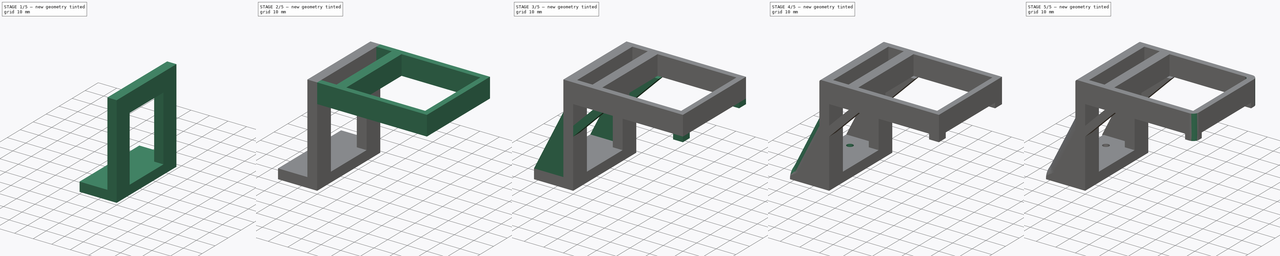
[diagram: build sequence overview — one tinted view per stage of 5, left to right]
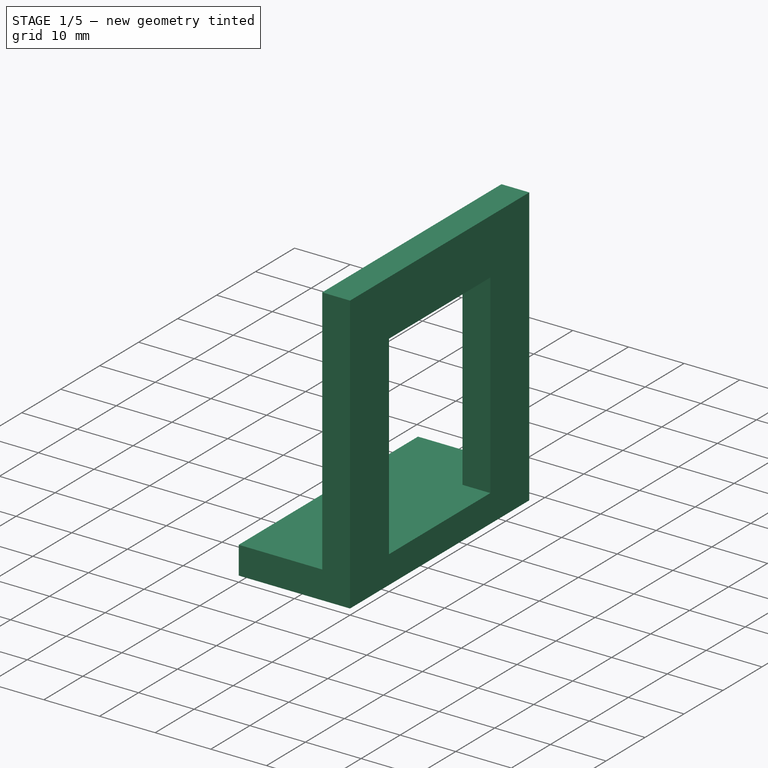
[diagram: stage 1 of 5 — iso view after this stage's code; geometry added in this stage tinted green]
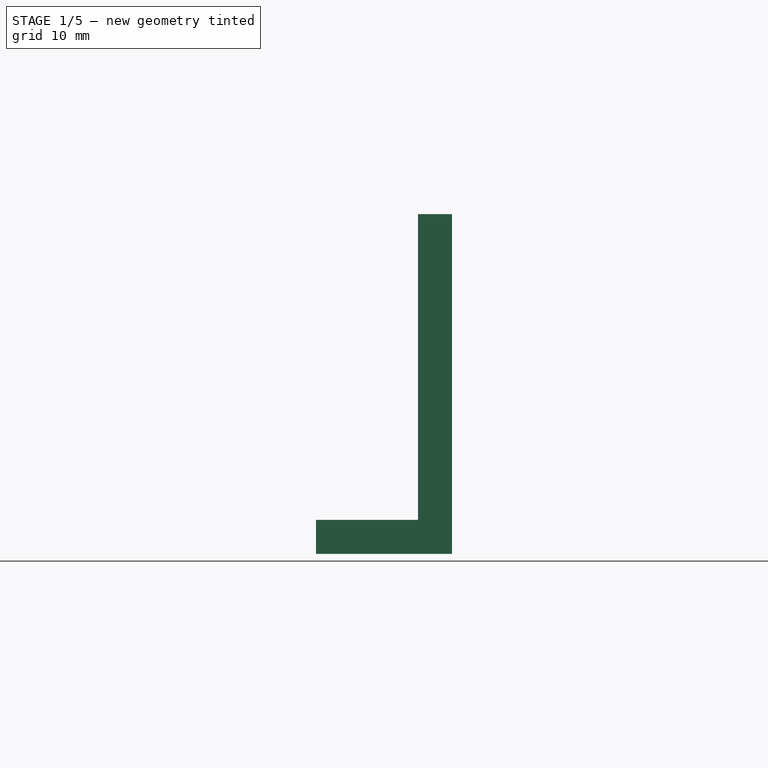
[diagram: stage 1 of 5 — front view after this stage's code; geometry added in this stage tinted green]
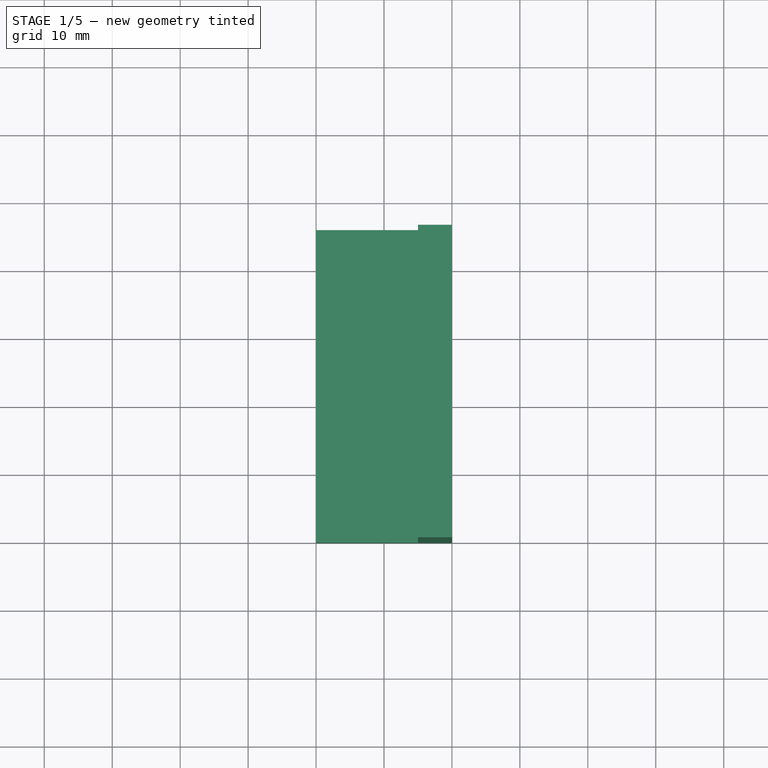
[diagram: stage 1 of 5 — top view after this stage's code; geometry added in this stage tinted green]
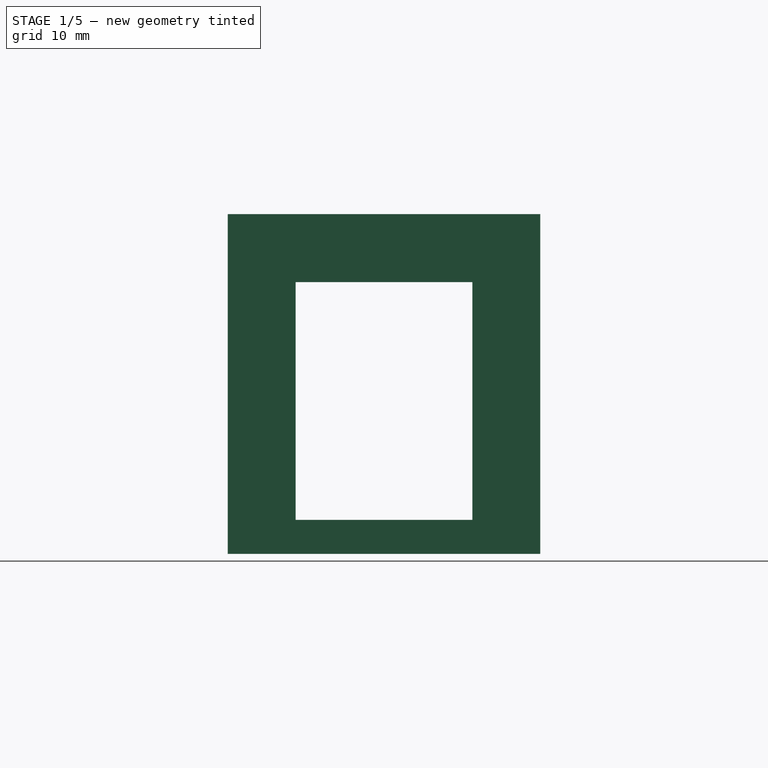
[diagram: stage 1 of 5 — right view after this stage's code; geometry added in this stage tinted green]
FCSTD DOCUMENT  (FreeCAD 0.19R24291 (Git))
Label: Fan Holder
License: All rights reserved
LicenseURL: http://en.wikipedia.org/wiki/All_rights_reserved
objects: Sketcher::SketchObject×12, PartDesign::Pad×6, PartDesign::Pocket×5, PartDesign::Fillet×5, PartDesign::Body×1
note: 45 computed .brp shape members not serialized (recipe doc carries the construction recipe); baked Part::Feature solids carry a one-line shape summary decoded from their .brp

FEATURE [Sketcher::SketchObject] Sketch
  FullyConstrained = true
  MapMode = 5
  Support = -> [XY_Plane]
  sketch-geometry (4):
    g0: LineSegment StartX=0 StartY=0 StartZ=0 EndX=-20 EndY=0 EndZ=0
    g1: LineSegment StartX=-20 StartY=0 StartZ=0 EndX=-20 EndY=46 EndZ=0
    g2: LineSegment StartX=-20 StartY=46 StartZ=0 EndX=0 EndY=46 EndZ=0
    g3: LineSegment StartX=0 StartY=46 StartZ=0 EndX=0 EndY=0 EndZ=0
  constraints (11):
    c: Coincident(g0,g1)
    c: Coincident(g1,g2)
    c: Coincident(g2,g3)
    c: Coincident(g3,g0)
    c: Horizontal(g0)
    c: Horizontal(g2)
    c: Vertical(g1)
    c: Vertical(g3)
    c: Coincident(g0,g-1)
    c: DistanceX(g0,g0) = 20
    c: DistanceY(g1,g1) = 46
FEATURE [PartDesign::Pad] Pad
  Direction = (1,1,1)
  Length = 5
  Length2 = 100
  Profile = -> Sketch
  Type = 0
FEATURE [Sketcher::SketchObject] Sketch001
  ExternalGeometry = -> [Pad]
  FullyConstrained = true
  MapMode = 5
  Placement = pos=(0,0,5) rot=(0,0,1;0rad)
  Support = -> [Pad]
  sketch-geometry (4):
    g0: LineSegment StartX=0 StartY=0 StartZ=0 EndX=-5 EndY=0 EndZ=0
    g1: LineSegment StartX=-5 StartY=0 StartZ=0 EndX=-5 EndY=46 EndZ=0
    g2: LineSegment StartX=-5 StartY=46 StartZ=0 EndX=0 EndY=46 EndZ=0
    g3: LineSegment StartX=0 StartY=46 StartZ=0 EndX=0 EndY=0 EndZ=0
  constraints (11):
    c: Coincident(g0,g1)
    c: Coincident(g1,g2)
    c: Coincident(g2,g3)
    c: Coincident(g3,g0)
    c: Horizontal(g0)
    c: Horizontal(g2)
    c: Vertical(g1)
    c: Vertical(g3)
    c: Coincident(g0,g-1)
    c: PointOnObject(g1,g-3)
    c: DistanceX(g2,g2) = 5
FEATURE [PartDesign::Pad] Pad001
  BaseFeature = -> Pad
  Direction = (1,1,1)
  Length = 45
  Length2 = 100
  Profile = -> Sketch001
  Type = 0
FEATURE [Sketcher::SketchObject] Sketch002
  FullyConstrained = true
  MapMode = 5
  Placement = pos=(0,0,0) rot=(0.57735,0.57735,0.57735;2.0944rad)
  Support = -> [Pad001]
FEATURE [Sketcher::SketchObject] Sketch003
  ExternalGeometry = -> [Pad001]
  FullyConstrained = true
  MapMode = 5
  Placement = pos=(-5,0,0) rot=(0.57735,-0.57735,-0.57735;2.0944rad)
  Support = -> [Pad001]
  sketch-geometry (4):
    g0: LineSegment StartX=-36 StartY=40 StartZ=0 EndX=-10 EndY=40 EndZ=0
    g1: LineSegment StartX=-10 StartY=40 StartZ=0 EndX=-10 EndY=5 EndZ=0
    g2: LineSegment StartX=-10 StartY=5 StartZ=0 EndX=-36 EndY=5 EndZ=0
    g3: LineSegment StartX=-36 StartY=5 StartZ=0 EndX=-36 EndY=40 EndZ=0
  constraints (12):
    c: Coincident(g0,g1)
    c: Coincident(g1,g2)
    c: Coincident(g2,g3)
    c: Coincident(g3,g0)
    c: Horizontal(g0)
    c: Horizontal(g2)
    c: Vertical(g1)
    c: Vertical(g3)
    c: PointOnObject(g1,g-3)
    c: Distance(g0,g-5) = 10
    c: Distance(g0,g-4) = 10
    c: DistanceX(g-2,g0) = -10
FEATURE [PartDesign::Pocket] Pocket
  BaseFeature = -> Pad001
  Length = 5
  Length2 = 100
  Profile = -> Sketch003
  Type = 0
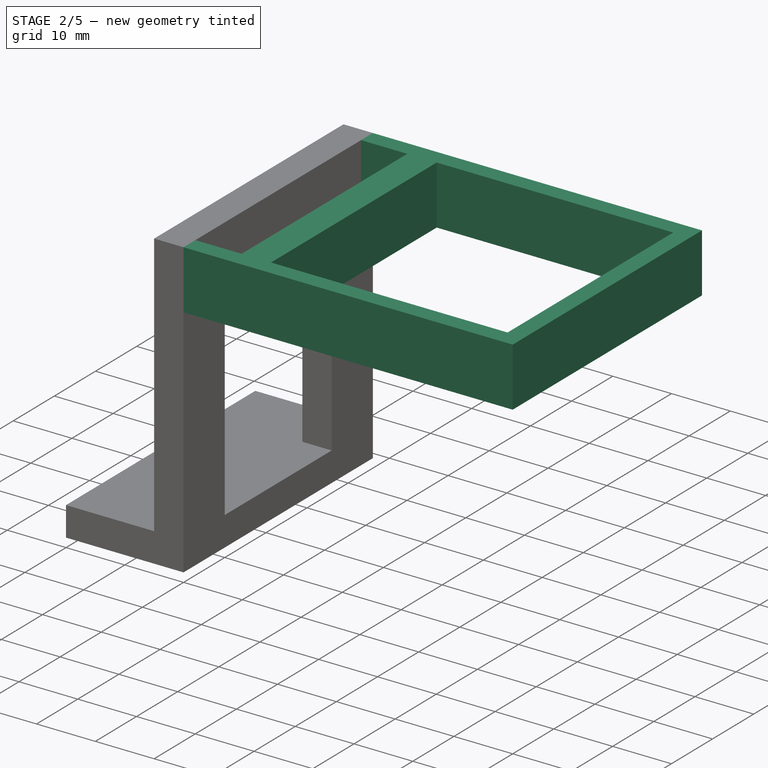
[diagram: stage 2 of 5 — iso view after this stage's code; geometry added in this stage tinted green]
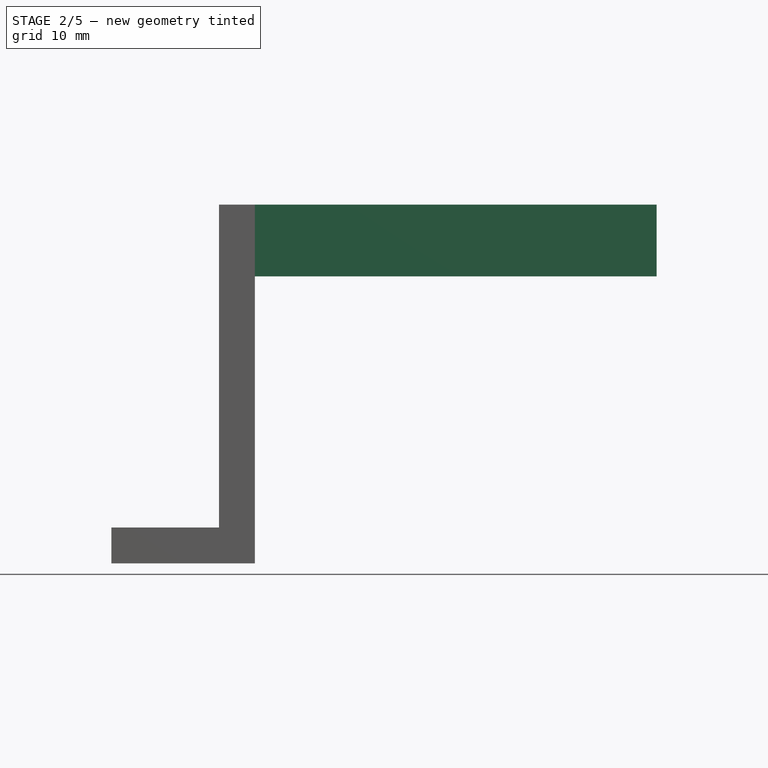
[diagram: stage 2 of 5 — front view after this stage's code; geometry added in this stage tinted green]
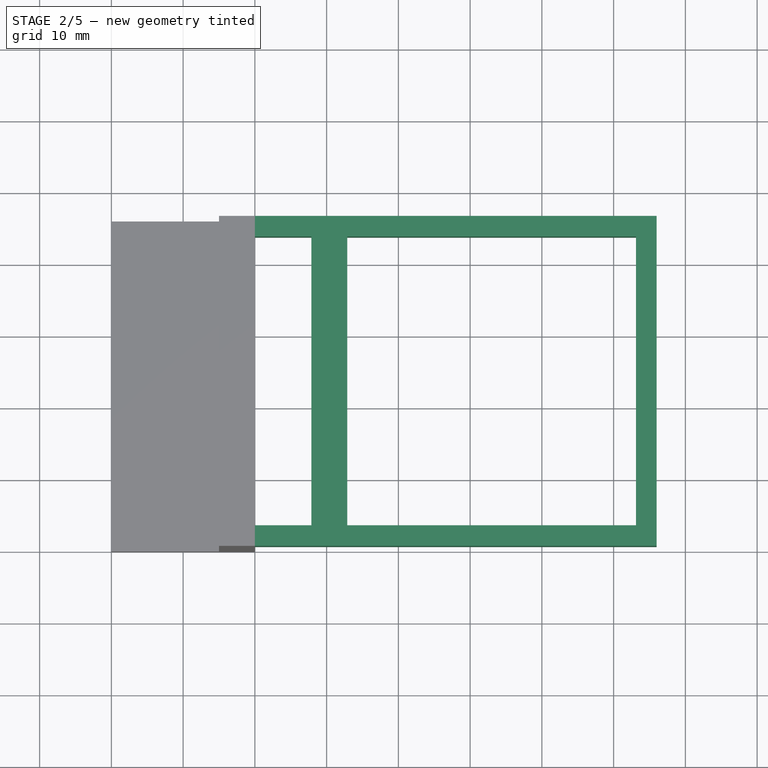
[diagram: stage 2 of 5 — top view after this stage's code; geometry added in this stage tinted green]
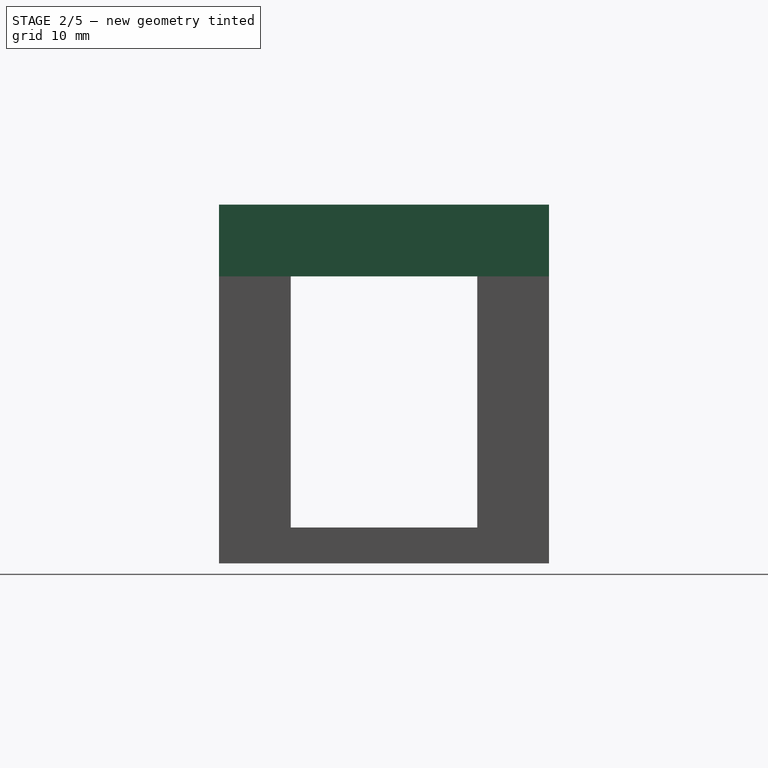
[diagram: stage 2 of 5 — right view after this stage's code; geometry added in this stage tinted green]
FEATURE [Sketcher::SketchObject] Sketch004
  ExternalGeometry = -> [Pocket]
  FullyConstrained = true
  MapMode = 5
  Placement = pos=(0,0,0) rot=(0.57735,0.57735,0.57735;2.0944rad)
  Support = -> [Pocket]
  sketch-geometry (4):
    g0: LineSegment StartX=0 StartY=50 StartZ=0 EndX=46 EndY=50 EndZ=0
    g1: LineSegment StartX=46 StartY=50 StartZ=0 EndX=46 EndY=40 EndZ=0
    g2: LineSegment StartX=46 StartY=40 StartZ=0 EndX=0 EndY=40 EndZ=0
    g3: LineSegment StartX=0 StartY=40 StartZ=0 EndX=0 EndY=50 EndZ=0
  constraints (11):
    c: Coincident(g0,g1)
    c: Coincident(g1,g2)
    c: Coincident(g2,g3)
    c: Coincident(g3,g0)
    c: Horizontal(g0)
    c: Horizontal(g2)
    c: Vertical(g1)
    c: Vertical(g3)
    c: Coincident(g0,g-6)
    c: PointOnObject(g1,g-5)
    c: PointOnObject(g-4,g2)
FEATURE [PartDesign::Pad] Pad002
  BaseFeature = -> Pocket
  Direction = (1,1,1)
  Length = 56
  Length2 = 100
  Profile = -> Sketch004
  Type = 0
FEATURE [Sketcher::SketchObject] Sketch005
  ExternalGeometry = -> [Pad002]
  FullyConstrained = true
  MapMode = 5
  Placement = pos=(0,0,50) rot=(0,0,1;0rad)
  Support = -> [Pad002]
  sketch-geometry (6):
    g0: LineSegment StartX=12.87 StartY=43.125 StartZ=0 EndX=53.12 EndY=43.125 EndZ=0
    g1: LineSegment StartX=53.12 StartY=43.125 StartZ=0 EndX=53.12 EndY=2.875 EndZ=0
    g2: LineSegment StartX=53.12 StartY=2.875 StartZ=0 EndX=12.87 EndY=2.875 EndZ=0
    g3: LineSegment StartX=12.87 StartY=2.875 StartZ=0 EndX=12.87 EndY=43.125 EndZ=0
    g4: LineSegment StartX=56 StartY=46 StartZ=0 EndX=53.12 EndY=43.125 EndZ=0
    g5: LineSegment StartX=56 StartY=0 StartZ=0 EndX=53.12 EndY=2.875 EndZ=0
  constraints (16):
    c: Coincident(g0,g1)
    c: Coincident(g1,g2)
    c: Coincident(g2,g3)
    c: Coincident(g3,g0)
    c: Horizontal(g0)
    c: Horizontal(g2)
    c: Vertical(g1)
    c: Vertical(g3)
    c: Equal(g2,g3)
    c: DistanceY(g3,g3) = 40.25
    c: Distance(g0,g-4) = 2.88
    c: Coincident(g4,g-4)
    c: Coincident(g4,g0)
    c: Coincident(g5,g-4)
    c: Coincident(g5,g1)
    c: Equal(g5,g4)
FEATURE [PartDesign::Pocket] Pocket001
  BaseFeature = -> Pad002
  Length = 5
  Length2 = 100
  Profile = -> Sketch005
  Type = 1
FEATURE [Sketcher::SketchObject] Sketch006
  ExternalGeometry = -> [Pocket001]
  FullyConstrained = true
  MapMode = 5
  Placement = pos=(0,0,50) rot=(0,0,1;0rad)
  Support = -> [Pocket001]
  sketch-geometry (8):
    g0: LineSegment StartX=12.87 StartY=43.125 StartZ=0 EndX=7.87 EndY=43.125 EndZ=0
    g1: LineSegment StartX=7.87 StartY=43.125 StartZ=0 EndX=7.87 EndY=2.875 EndZ=0
    g2: LineSegment StartX=7.87 StartY=2.875 StartZ=0 EndX=12.87 EndY=2.875 EndZ=0
    g3: LineSegment StartX=12.87 StartY=2.875 StartZ=0 EndX=12.87 EndY=43.125 EndZ=0
    g4: LineSegment StartX=7.87 StartY=43.125 StartZ=0 EndX=0 EndY=43.125 EndZ=0
    g5: LineSegment StartX=0 StartY=43.125 StartZ=0 EndX=0 EndY=2.875 EndZ=0
    g6: LineSegment StartX=0 StartY=2.875 StartZ=0 EndX=7.87 EndY=2.875 EndZ=0
    g7: LineSegment StartX=7.87 StartY=2.875 StartZ=0 EndX=7.87 EndY=43.125 EndZ=0
  constraints (21):
    c: Coincident(g0,g1)
    c: Coincident(g1,g2)
    c: Coincident(g2,g3)
    c: Coincident(g3,g0)
    c: Horizontal(g0)
    c: Horizontal(g2)
    c: Vertical(g1)
    c: Coincident(g0,g-3)
    c: Coincident(g2,g-3)
    c: DistanceX(g2,g2) = 5
    c: Coincident(g4,g5)
    c: Coincident(g5,g6)
    c: Coincident(g6,g7)
    c: Coincident(g7,g4)
    c: Horizontal(g4)
    c: Horizontal(g6)
    c: Vertical(g5)
    c: Vertical(g7)
    c: Coincident(g4,g0)
    c: PointOnObject(g5,g-2)
    c: PointOnObject(g1,g6)
FEATURE [PartDesign::Pocket] Pocket002
  BaseFeature = -> Pocket001
  Length = 5
  Length2 = 100
  Profile = -> Sketch006
  Type = 1
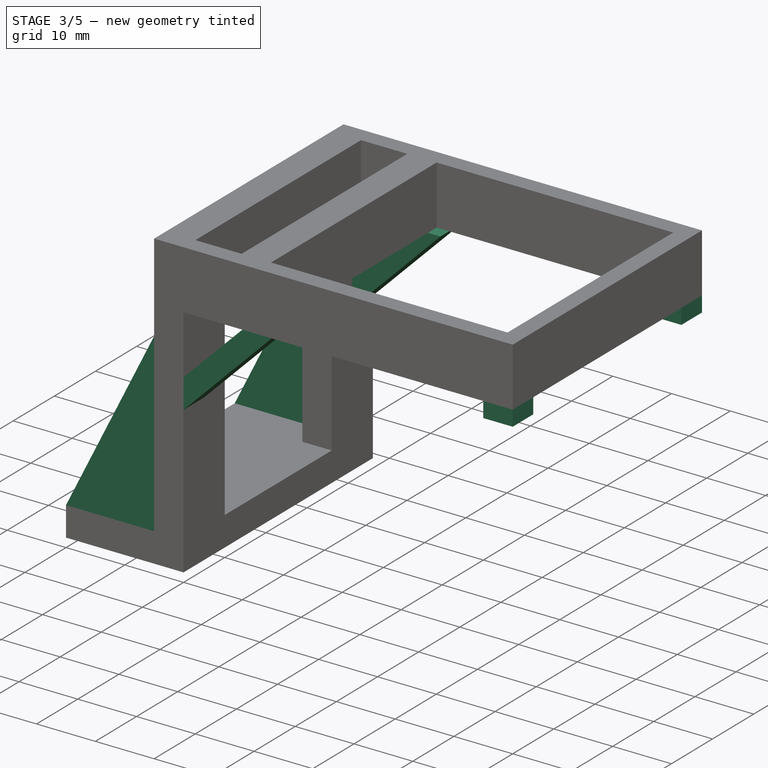
[diagram: stage 3 of 5 — iso view after this stage's code; geometry added in this stage tinted green]
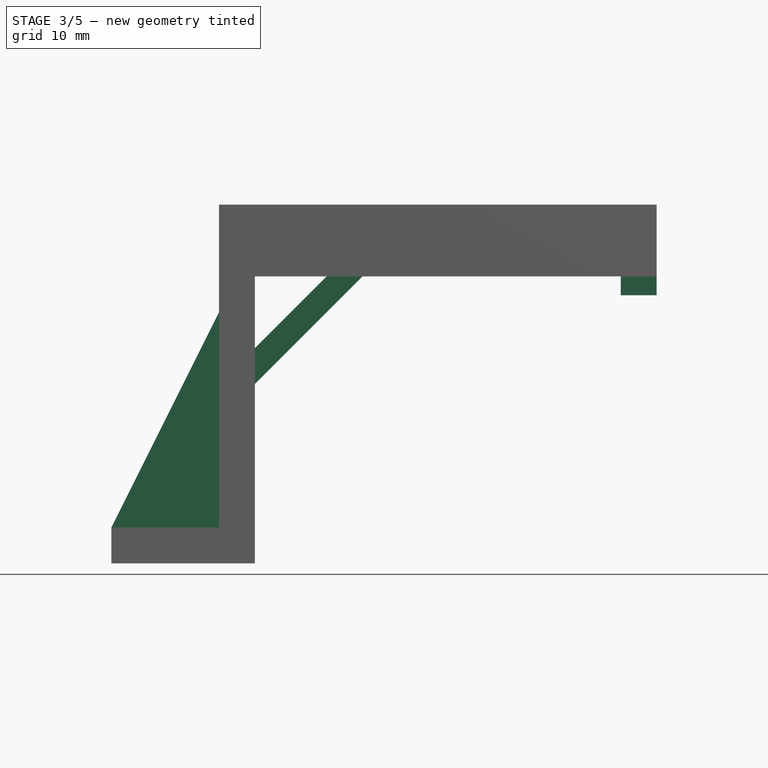
[diagram: stage 3 of 5 — front view after this stage's code; geometry added in this stage tinted green]
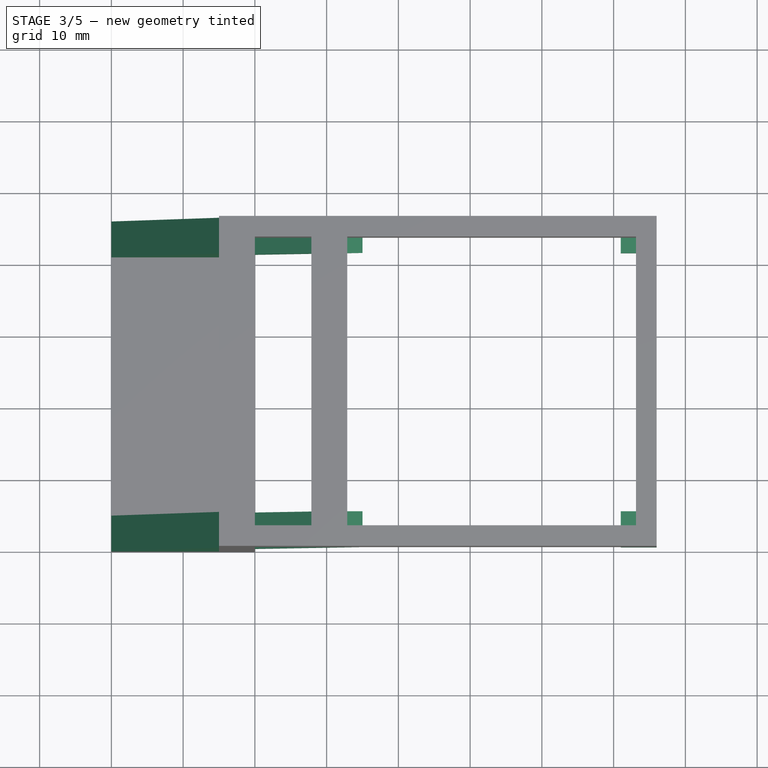
[diagram: stage 3 of 5 — top view after this stage's code; geometry added in this stage tinted green]
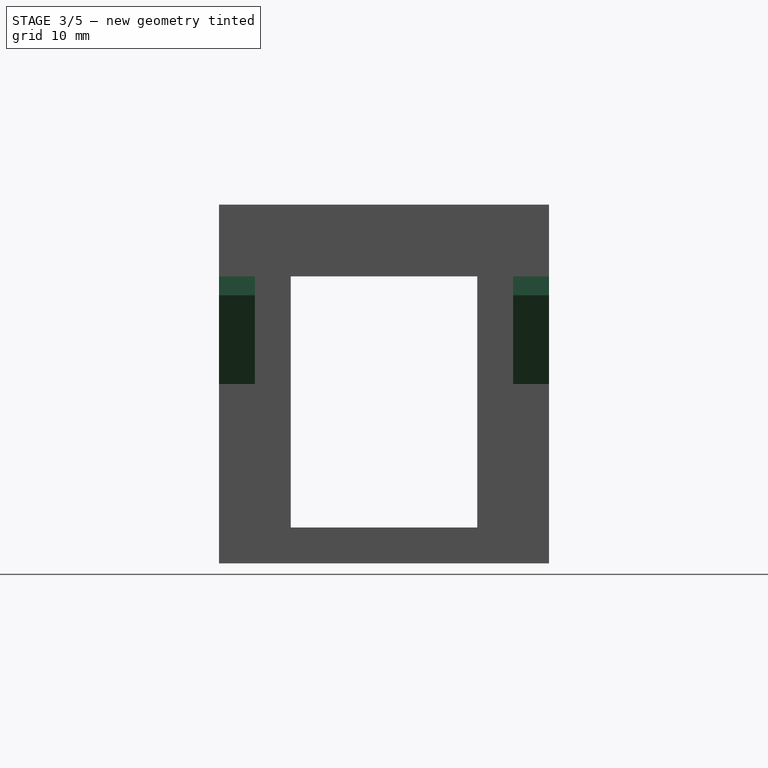
[diagram: stage 3 of 5 — right view after this stage's code; geometry added in this stage tinted green]
FEATURE [Sketcher::SketchObject] Sketch007
  ExternalGeometry = -> [Pocket002]
  FullyConstrained = false
  MapMode = 5
  Placement = pos=(0,46,0) rot=(0,0.707107,0.707107;3.14159rad)
  Support = -> [Pocket002]
  sketch-geometry (8):
    g0: LineSegment StartX=-15 StartY=40 StartZ=0 EndX=0 EndY=25 EndZ=0
    g1: LineSegment StartX=0 StartY=25 StartZ=0 EndX=0 EndY=30 EndZ=0
    g2: LineSegment StartX=0 StartY=30 StartZ=0 EndX=-10 EndY=40 EndZ=0
    g3: LineSegment StartX=-10 StartY=40 StartZ=0 EndX=-15 EndY=40 EndZ=0
    g4: LineSegment StartX=-56 StartY=40 StartZ=0 EndX=-51 EndY=40 EndZ=0
    g5: LineSegment StartX=-51 StartY=40 StartZ=0 EndX=-51 EndY=37.3739 EndZ=0
    g6: LineSegment StartX=-51 StartY=37.3739 StartZ=0 EndX=-56 EndY=37.3739 EndZ=0
    g7: LineSegment StartX=-56 StartY=37.3739 StartZ=0 EndX=-56 EndY=40 EndZ=0
  constraints (22):
    c: PointOnObject(g0,g-3)
    c: Coincident(g1,g0)
    c: Coincident(g2,g1)
    c: PointOnObject(g2,g-3)
    c: Coincident(g3,g2)
    c: Coincident(g3,g0)
    c: PointOnObject(g0,g-2)
    c: PointOnObject(g1,g-2)
    c: DistanceY(g1,g1) = 5
    c: DistanceX(g3,g3) = 5
    c: Distance(g0,g-3) = 15
    c: Distance(g-3,g2) = 10
    c: Coincident(g4,g5)
    c: Coincident(g5,g6)
    c: Coincident(g6,g7)
    c: Coincident(g7,g4)
    c: Horizontal(g4)
    c: Horizontal(g6)
    c: Vertical(g5)
    c: Vertical(g7)
    c: Coincident(g4,g-3)
    c: DistanceX(g6,g6) = 5
FEATURE [PartDesign::Pad] Pad003
  BaseFeature = -> Pocket002
  Direction = (1,1,1)
  Length = 5
  Length2 = 100
  Profile = -> Sketch007
  Reversed = true
  Type = 0
FEATURE [Sketcher::SketchObject] Sketch008
  ExternalGeometry = -> [Pad003]
  FullyConstrained = true
  MapMode = 5
  Placement = pos=(0,0,0) rot=(1,0,0;1.5708rad)
  Support = -> [Pad003]
  sketch-geometry (8):
    g0: LineSegment StartX=0 StartY=30 StartZ=0 EndX=10 EndY=40 EndZ=0
    g1: LineSegment StartX=15 StartY=40 StartZ=0 EndX=10 EndY=40 EndZ=0
    g2: LineSegment StartX=15 StartY=40 StartZ=0 EndX=1.8e-15 EndY=25 EndZ=0
    g3: LineSegment StartX=1.8e-15 StartY=25 StartZ=0 EndX=0 EndY=30 EndZ=0
    g4: LineSegment StartX=51 StartY=40 StartZ=0 EndX=56 EndY=40 EndZ=0
    g5: LineSegment StartX=56 StartY=40 StartZ=0 EndX=56 EndY=37.3739 EndZ=0
    g6: LineSegment StartX=56 StartY=37.3739 StartZ=0 EndX=51 EndY=37.3739 EndZ=0
    g7: LineSegment StartX=51 StartY=37.3739 StartZ=0 EndX=51 EndY=40 EndZ=0
  constraints (18):
    c: Coincident(g0,g-7)
    c: Coincident(g0,g-7)
    c: Coincident(g1,g-6)
    c: Coincident(g1,g0)
    c: Coincident(g2,g1)
    c: Coincident(g2,g-6)
    c: Coincident(g3,g2)
    c: Coincident(g3,g0)
    c: Coincident(g4,g5)
    c: Coincident(g5,g6)
    c: Coincident(g6,g7)
    c: Coincident(g7,g4)
    c: Horizontal(g4)
    c: Horizontal(g6)
    c: Vertical(g5)
    c: Vertical(g7)
    c: Coincident(g4,g-3)
    c: Coincident(g5,g-4)
FEATURE [PartDesign::Pad] Pad004
  BaseFeature = -> Pad003
  Direction = (1,1,1)
  Length = 5
  Length2 = 100
  Profile = -> Sketch008
  Reversed = true
  Type = 0
FEATURE [Sketcher::SketchObject] Sketch009
  ExternalGeometry = -> [Pad004]
  FullyConstrained = true
  MapMode = 5
  Placement = pos=(0,0,5) rot=(0,0,1;0rad)
  Support = -> [Pad004]
  sketch-geometry (8):
    g0: LineSegment StartX=-5 StartY=46 StartZ=0 EndX=-20 EndY=46 EndZ=0
    g1: LineSegment StartX=-20 StartY=46 StartZ=0 EndX=-20 EndY=41 EndZ=0
    g2: LineSegment StartX=-20 StartY=41 StartZ=0 EndX=-5 EndY=41 EndZ=0
    g3: LineSegment StartX=-5 StartY=41 StartZ=0 EndX=-5 EndY=46 EndZ=0
    g4: LineSegment StartX=-5 StartY=0 StartZ=0 EndX=-20 EndY=0 EndZ=0
    g5: LineSegment StartX=-20 StartY=0 StartZ=0 EndX=-20 EndY=5 EndZ=0
    g6: LineSegment StartX=-20 StartY=5 StartZ=0 EndX=-5 EndY=5 EndZ=0
    g7: LineSegment StartX=-5 StartY=5 StartZ=0 EndX=-5 EndY=0 EndZ=0
  constraints (22):
    c: Coincident(g0,g1)
    c: Coincident(g1,g2)
    c: Coincident(g2,g3)
    c: Coincident(g3,g0)
    c: Horizontal(g0)
    c: Horizontal(g2)
    c: Vertical(g1)
    c: Vertical(g3)
    c: Coincident(g0,g-6)
    c: PointOnObject(g1,g-5)
    c: Coincident(g4,g5)
    c: Coincident(g5,g6)
    c: Coincident(g6,g7)
    c: Coincident(g7,g4)
    c: Horizontal(g4)
    c: Horizontal(g6)
    c: Vertical(g5)
    c: Vertical(g7)
    c: Coincident(g4,g-6)
    c: PointOnObject(g5,g-5)
    c: DistanceY(g5,g5) = 5
    c: DistanceY(g1,g1) = 5
FEATURE [PartDesign::Pad] Pad005
  BaseFeature = -> Pad004
  Direction = (1,1,1)
  Length = 30
  Length2 = 100
  Profile = -> Sketch009
  Type = 0
FEATURE [Sketcher::SketchObject] Sketch010
  ExternalGeometry = -> [Pad005]
  FullyConstrained = true
  MapMode = 5
  Placement = pos=(0,0,0) rot=(1,0,0;1.5708rad)
  Support = -> [Pad005]
  sketch-geometry (3):
    g0: LineSegment StartX=-5 StartY=35 StartZ=0 EndX=-20 EndY=5 EndZ=0
    g1: LineSegment StartX=-20 StartY=35 StartZ=0 EndX=-20 EndY=5 EndZ=0
    g2: LineSegment StartX=-20 StartY=35 StartZ=0 EndX=-5 EndY=35 EndZ=0
  constraints (6):
    c: Coincident(g0,g-3)
    c: Coincident(g0,g-4)
    c: Coincident(g1,g-4)
    c: Coincident(g1,g0)
    c: Coincident(g2,g1)
    c: Coincident(g2,g0)
FEATURE [PartDesign::Pocket] Pocket003
  BaseFeature = -> Pad005
  Length = 5
  Length2 = 100
  Profile = -> Sketch010
  Type = 1
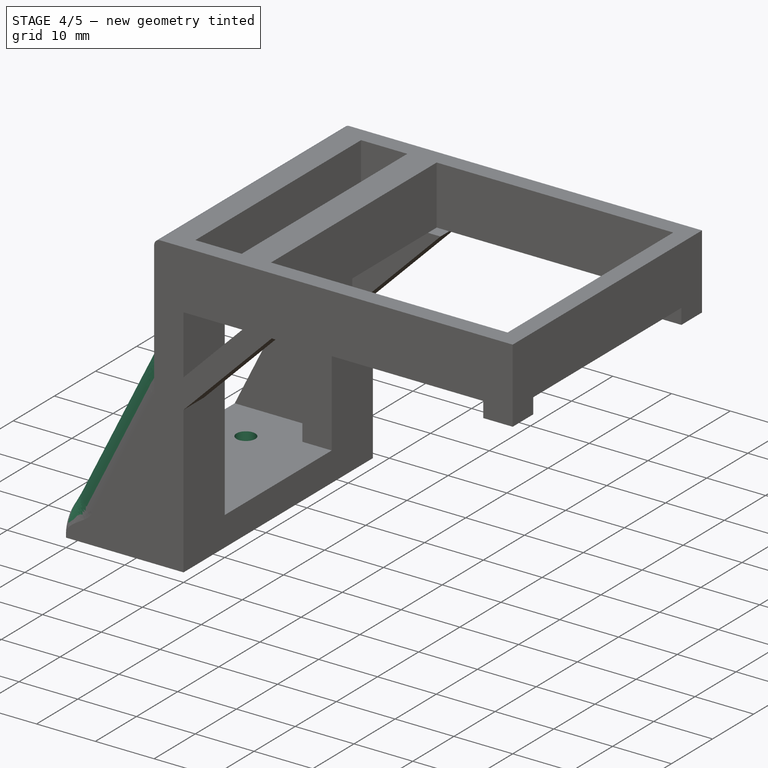
[diagram: stage 4 of 5 — iso view after this stage's code; geometry added in this stage tinted green]
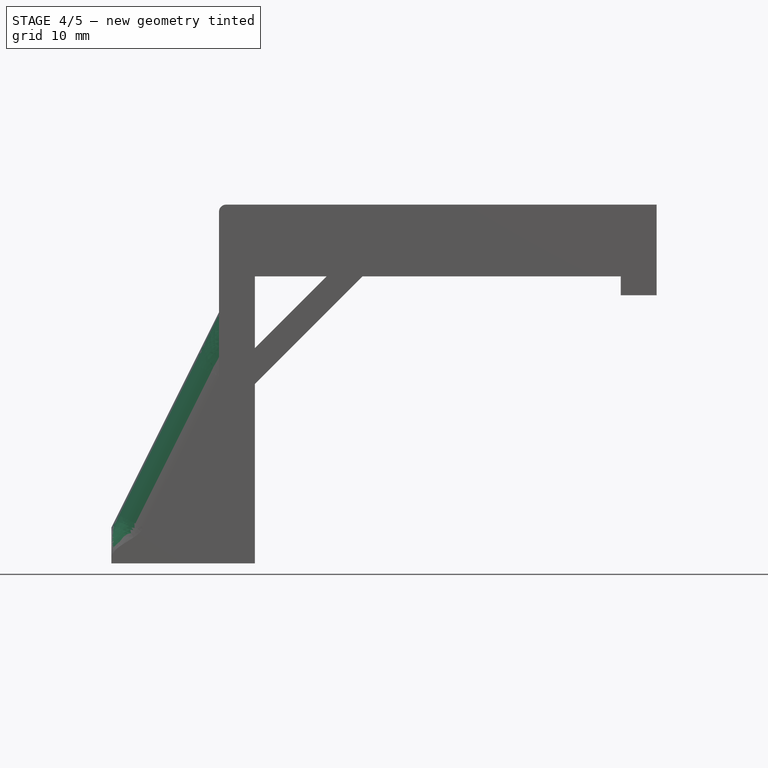
[diagram: stage 4 of 5 — front view after this stage's code; geometry added in this stage tinted green]
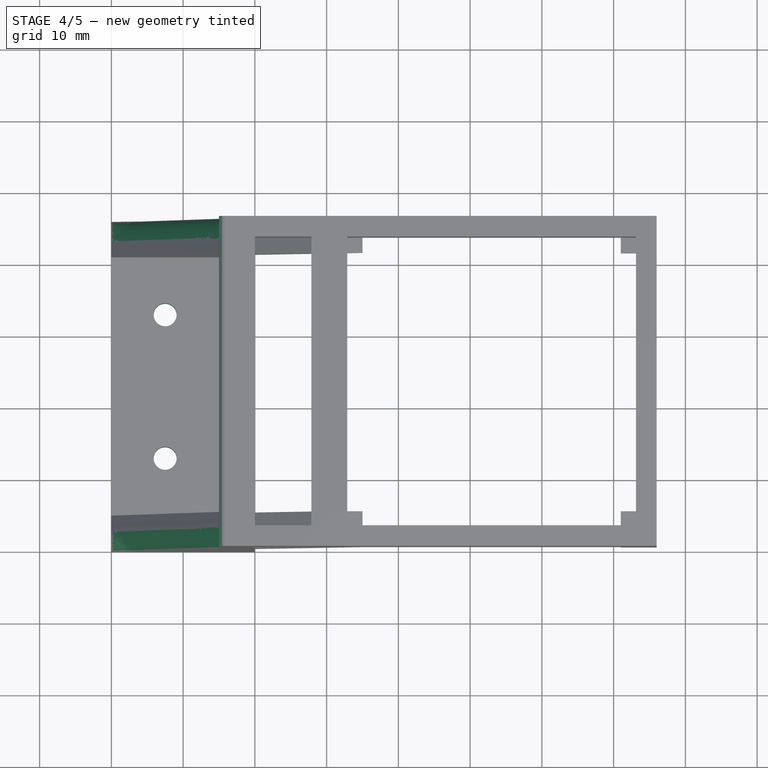
[diagram: stage 4 of 5 — top view after this stage's code; geometry added in this stage tinted green]
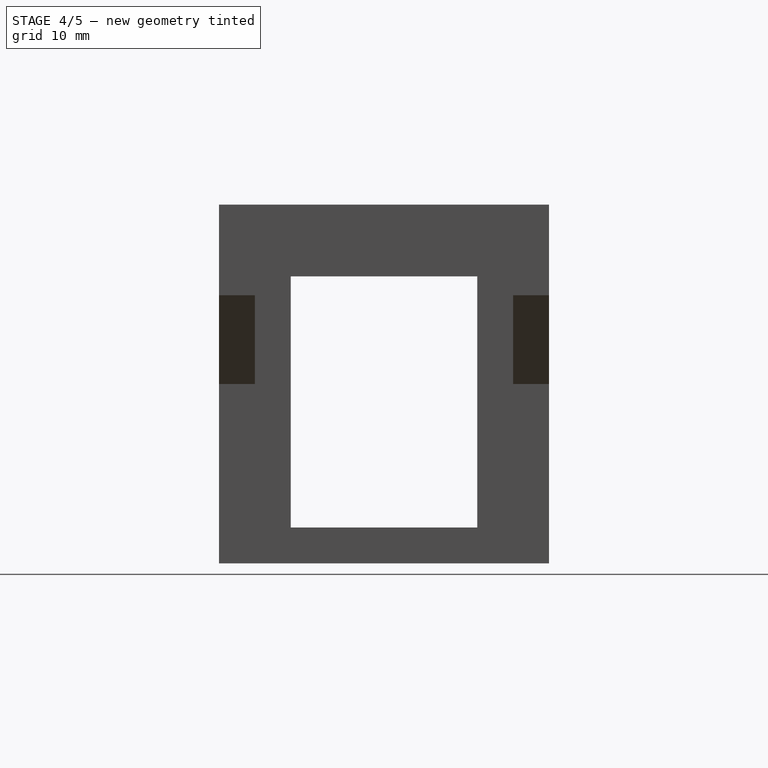
[diagram: stage 4 of 5 — right view after this stage's code; geometry added in this stage tinted green]
FEATURE [Sketcher::SketchObject] Sketch011
  ExternalGeometry = -> [Pocket003]
  FullyConstrained = true
  MapMode = 5
  Placement = pos=(0,0,5) rot=(0,0,1;0rad)
  Support = -> [Pocket003]
  sketch-geometry (7):
    g0: LineSegment StartX=-20 StartY=41 StartZ=0 EndX=-12.5 EndY=33 EndZ=0
    g1: LineSegment StartX=-12.5 StartY=33 StartZ=0 EndX=-5 EndY=41 EndZ=0
    g2: LineSegment StartX=-12.5 StartY=33 StartZ=0 EndX=-12.5 EndY=13 EndZ=0
    g3: LineSegment StartX=-12.5 StartY=13 StartZ=0 EndX=-5 EndY=5 EndZ=0
    g4: LineSegment StartX=-20 StartY=5 StartZ=0 EndX=-12.5 EndY=13 EndZ=0
    g5: Circle CenterX=-12.5 CenterY=33 CenterZ=0 NormalX=0 NormalY=0 NormalZ=1 AngleXU=0 Radius=1.6
    g6: Circle CenterX=-12.5 CenterY=13 CenterZ=0 NormalX=0 NormalY=0 NormalZ=1 AngleXU=0 Radius=1.6
  constraints (16):
    c: Coincident(g0,g-6)
    c: Coincident(g1,g0)
    c: Coincident(g1,g-3)
    c: Coincident(g2,g0)
    c: Coincident(g3,g2)
    c: Coincident(g3,g-4)
    c: Coincident(g4,g-6)
    c: Coincident(g4,g2)
    c: Equal(g3,g4)
    c: Equal(g4,g0)
    c: Equal(g0,g1)
    c: Distance(g2) = 20
    c: Coincident(g5,g0)
    c: Coincident(g6,g2)
    c: Radius(g6) = 1.6
    c: Equal(g6,g5)
FEATURE [PartDesign::Pocket] Pocket004
  BaseFeature = -> Pocket003
  Length = 5
  Length2 = 100
  Profile = -> Sketch011
  Type = 0
FEATURE [PartDesign::Fillet] Fillet
  Base = -> Pocket004 [Edge68]
  BaseFeature = -> Pocket004
  Radius = 1
  SupportTransform = false
FEATURE [PartDesign::Fillet] Fillet001
  Base = -> Fillet [Edge22,Edge51]
  BaseFeature = -> Fillet
  Radius = 4
  SupportTransform = false
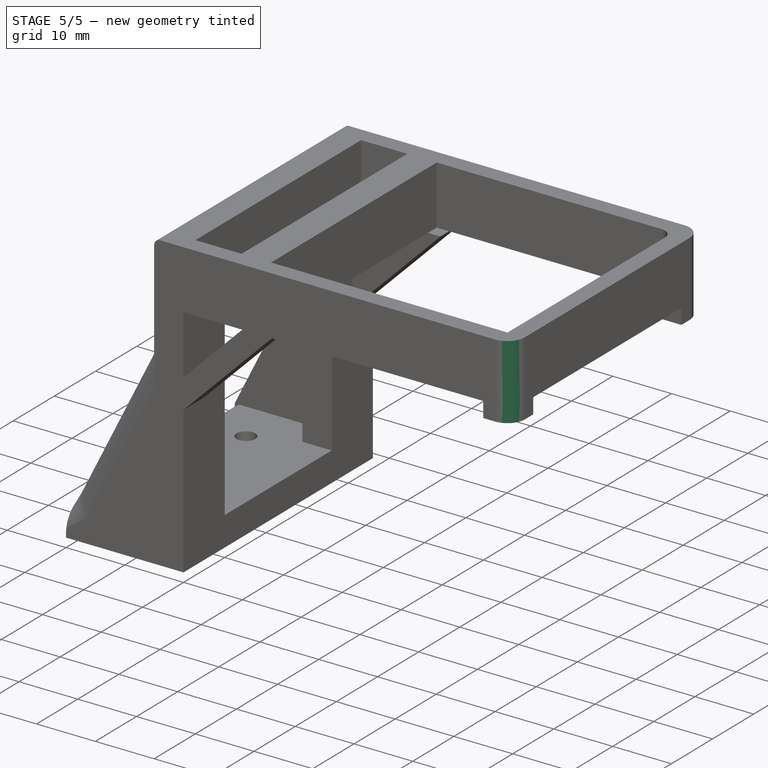
[diagram: stage 5 of 5 — iso view after this stage's code; geometry added in this stage tinted green]
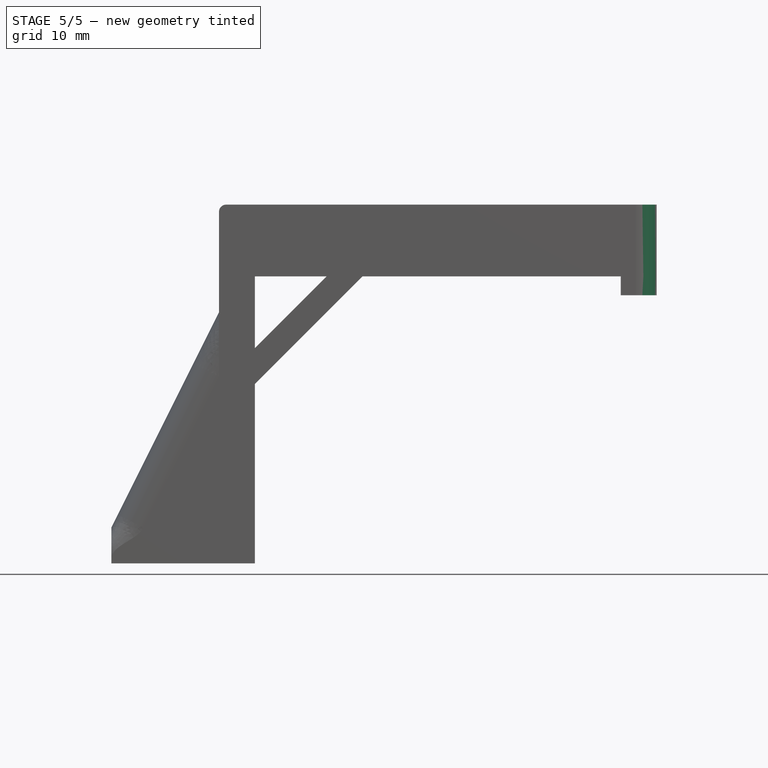
[diagram: stage 5 of 5 — front view after this stage's code; geometry added in this stage tinted green]
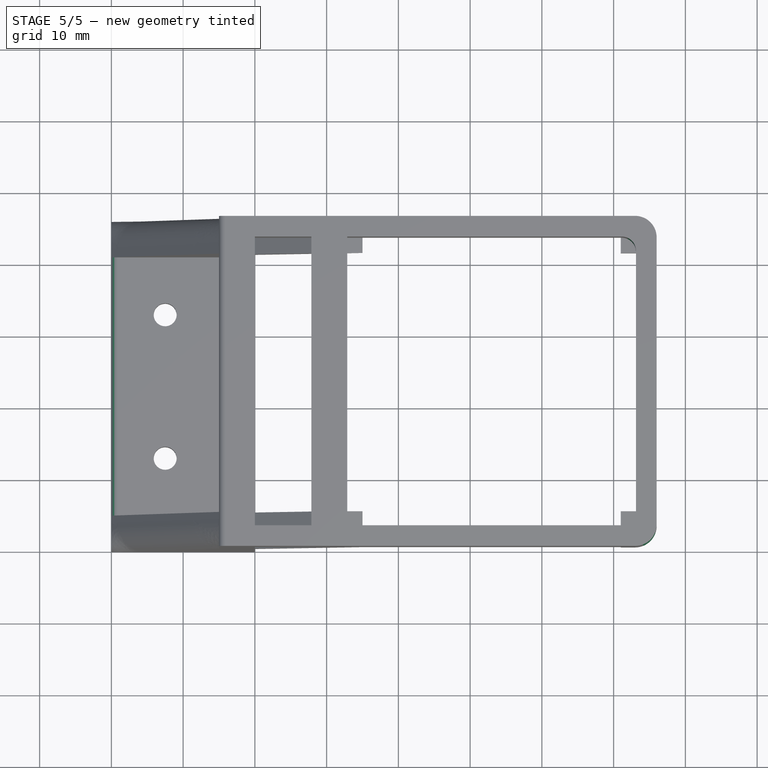
[diagram: stage 5 of 5 — top view after this stage's code; geometry added in this stage tinted green]
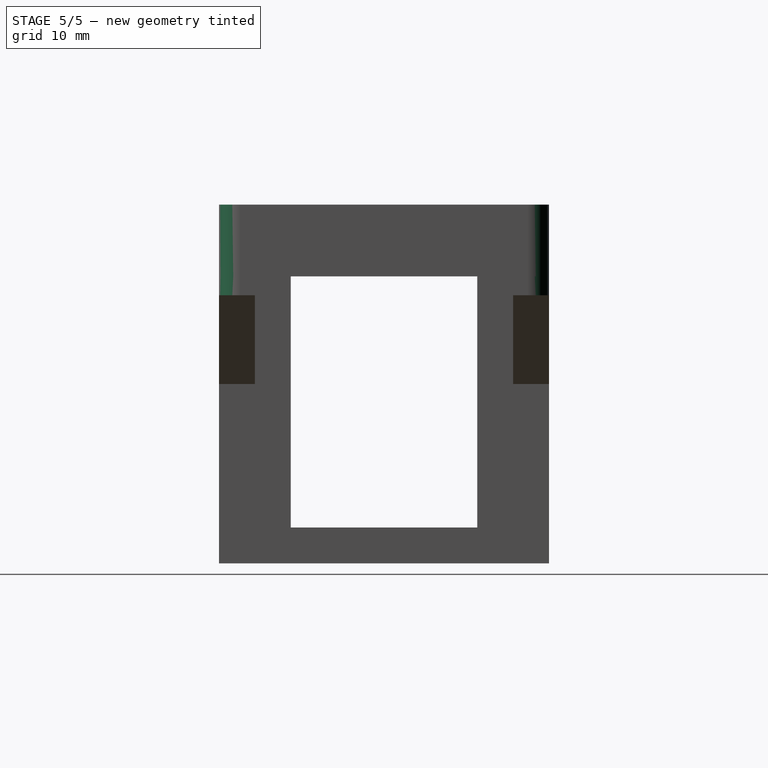
[diagram: stage 5 of 5 — right view after this stage's code; geometry added in this stage tinted green]
FEATURE [PartDesign::Fillet] Fillet002
  Base = -> Fillet001 [Edge84]
  BaseFeature = -> Fillet001
  Radius = 1
  SupportTransform = false
FEATURE [PartDesign::Fillet] Fillet003
  Base = -> Fillet002 [Edge114,Edge160,Edge176,Edge135]
  BaseFeature = -> Fillet002
  Radius = 3
  SupportTransform = false
FEATURE [PartDesign::Fillet] Fillet004
  Base = -> Fillet003 [Edge86]
  BaseFeature = -> Fillet003
  Radius = 2
  SupportTransform = false
FEATURE [PartDesign::Body] Body
  Group = -> [Sketch,Pad,Sketch001,Pad001,Sketch002,Sketch003,Pocket,Sketch004,Pad002,Sketch005,Pocket001,Sketch006,Pocket002,Sketch007,Pad003,Sketch008,Pad004,Sketch009,Pad005,Sketch010,Pocket003,Sketch011,Pocket004,Fillet,Fillet001,Fillet002,Fillet003,Fillet004]
  Origin = -> Origin
  Tip = -> Fillet004
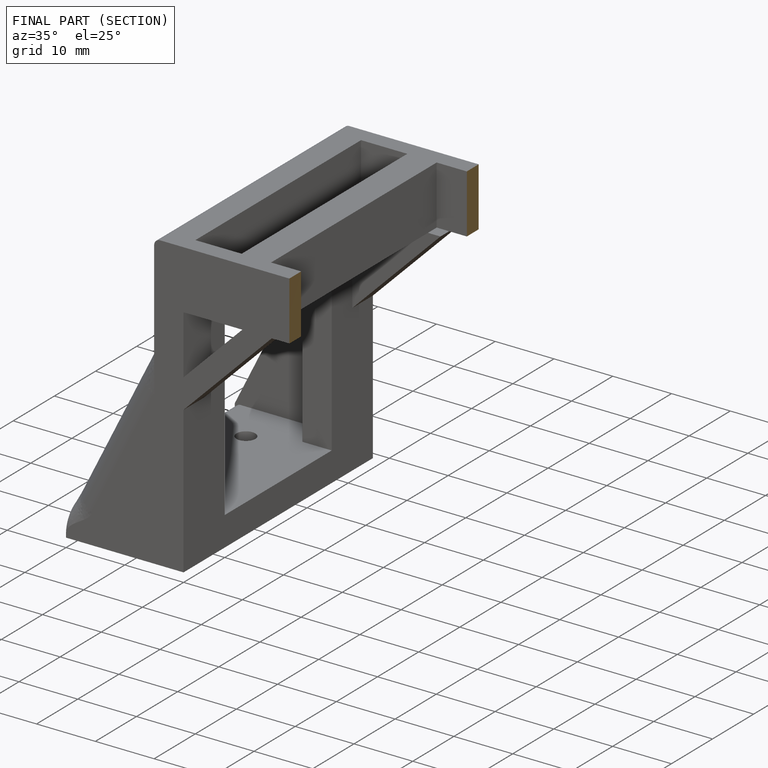
[diagram: finished part — half-section view (interior)]
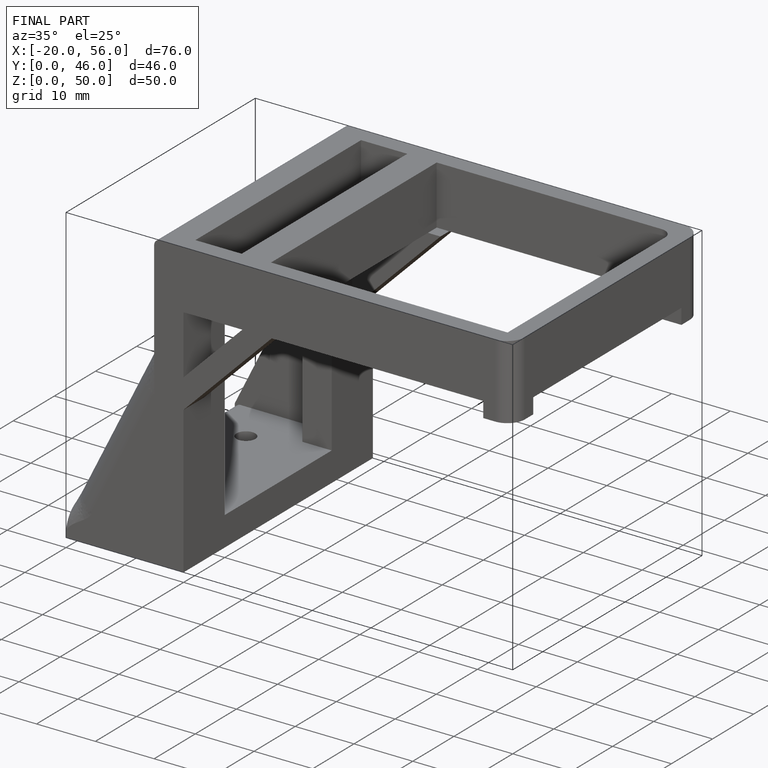
[diagram: finished part — iso view with bounding-box wireframe]
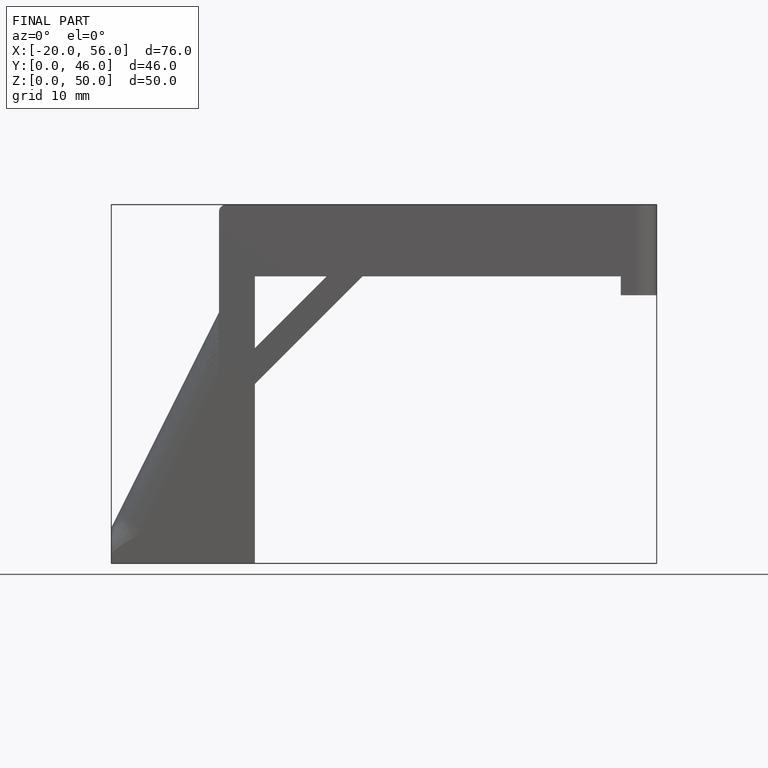
[diagram: finished part — front view with bounding-box wireframe]
